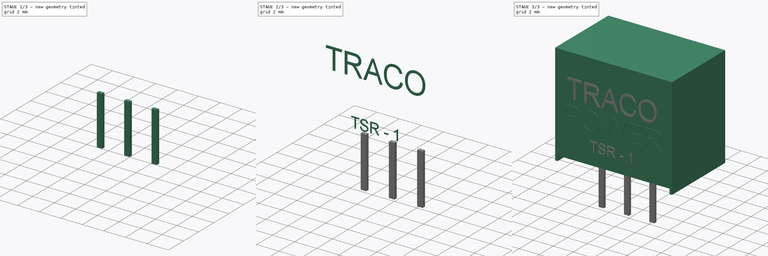
[diagram: build sequence overview — one tinted view per stage of 3, left to right]
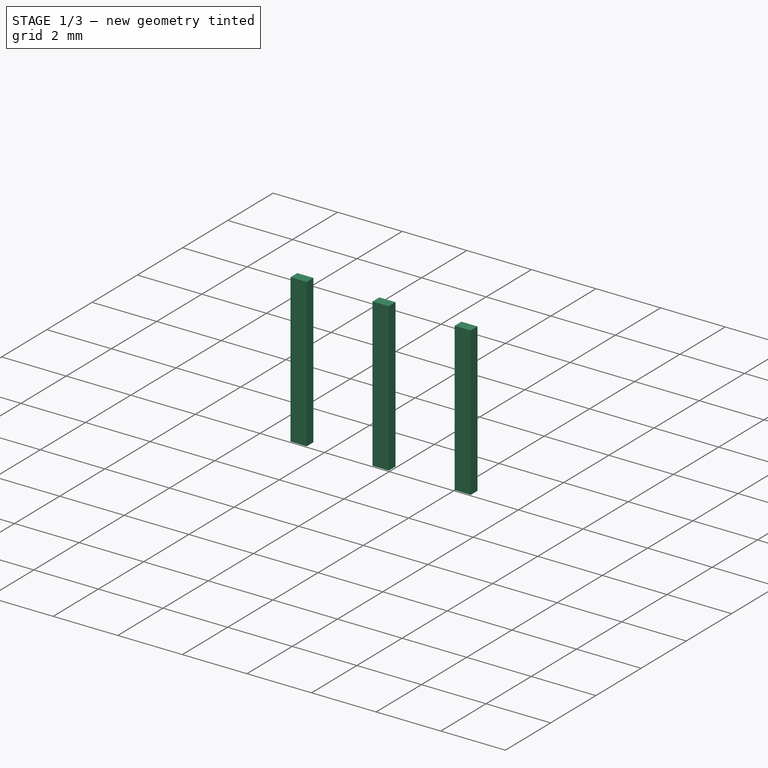
[diagram: stage 1 of 3 — iso view after this stage's code; geometry added in this stage tinted green]
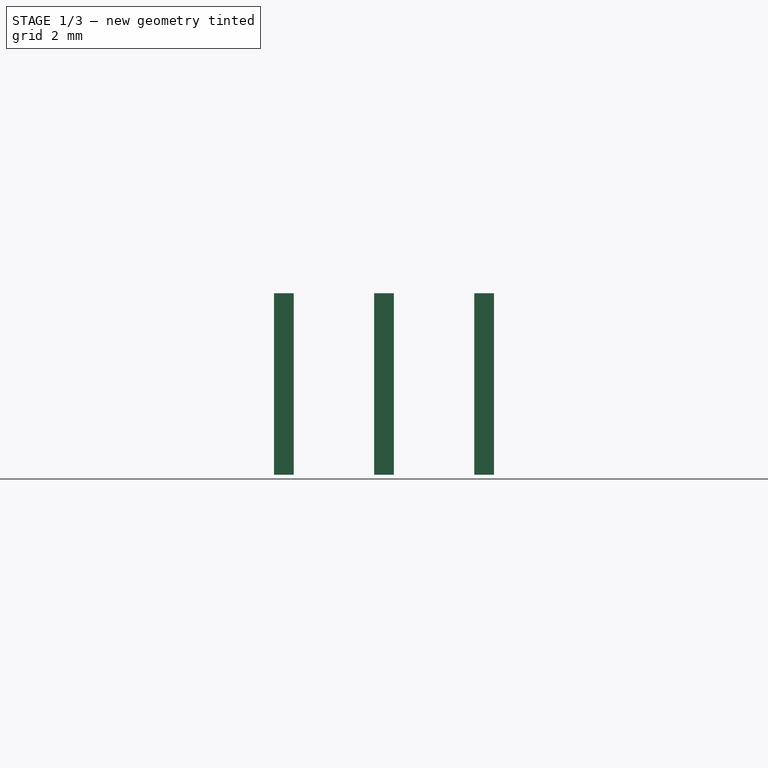
[diagram: stage 1 of 3 — front view after this stage's code; geometry added in this stage tinted green]
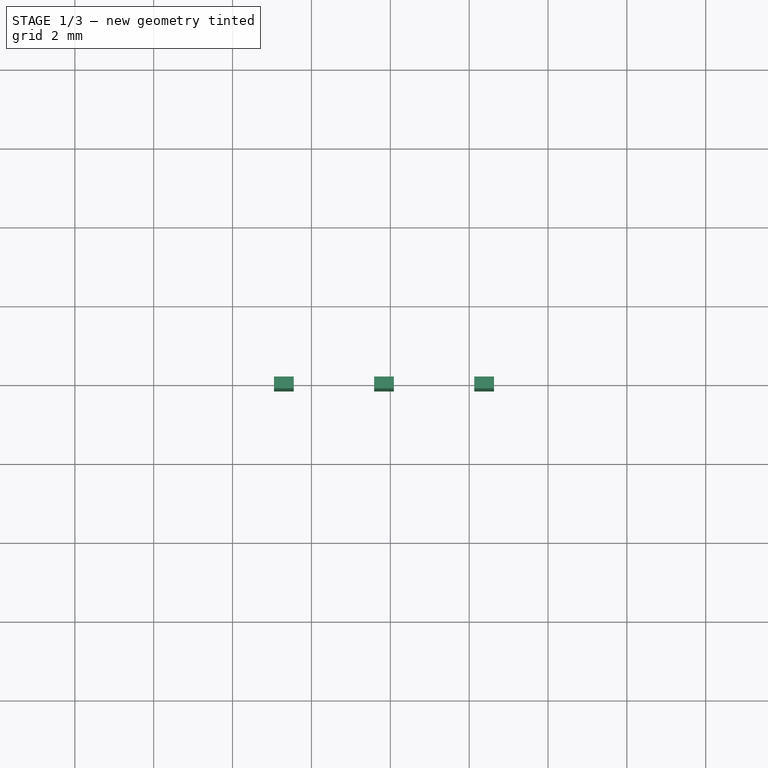
[diagram: stage 1 of 3 — top view after this stage's code; geometry added in this stage tinted green]
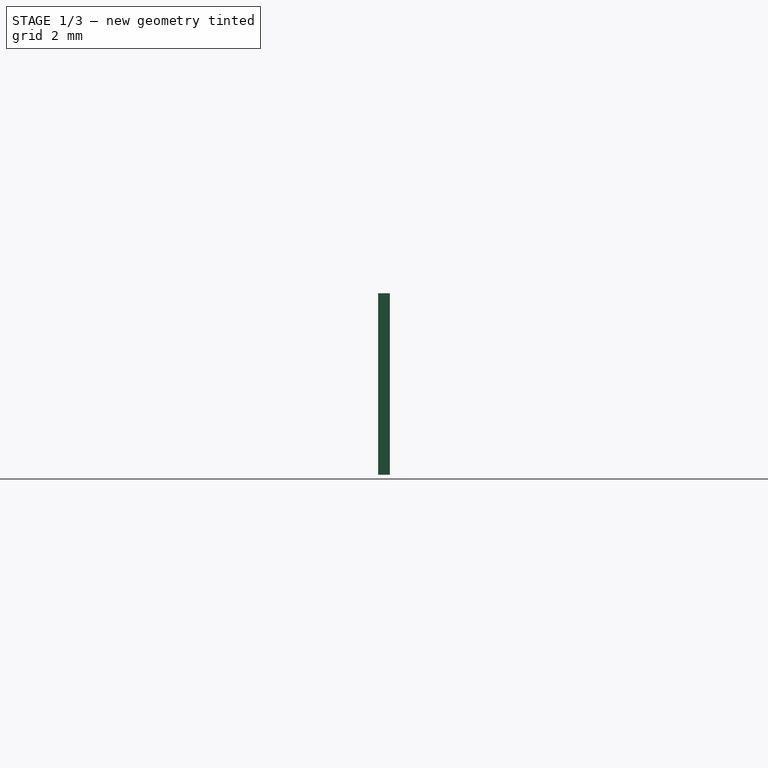
[diagram: stage 1 of 3 — right view after this stage's code; geometry added in this stage tinted green]
FCSTD DOCUMENT  (FreeCAD 0.14R3700 (Git))
Label: TSR-1
License: CC-BY 3.0
LicenseURL: http://creativecommons.org/licenses/by/3.0/
objects: Part::Part2DObjectPython×3, Part::Extrusion×3, Sketcher::SketchObject×2, PartDesign::Pad×2, Part::FeaturePython×1
note: 13 computed .brp shape members not serialized (recipe doc carries the construction recipe); baked Part::Feature solids carry a one-line shape summary decoded from their .brp

FEATURE [PartDesign::Pad] Pad001
  Length = 0.3
  Length2 = 100
  Midplane = true
  Placement = pos=(3.3,2,0) rot=(1,0,0;1.5708rad)
  Sketch = -> Sketch
  Type = 0
FEATURE [Part::FeaturePython] Array  # Draft array (typed FeaturePython)
  Angle = 360
  ArrayType = 0
  Axis = (0,0,1)
  Base = -> Pad001
  Center = (0,0,0)
  IntervalX = (2.54,0,0)
  IntervalY = (0,1,0)
  IntervalZ = (0,0,1)
  NumberPolar = 1
  NumberX = 3
  NumberY = 1
  NumberZ = 1
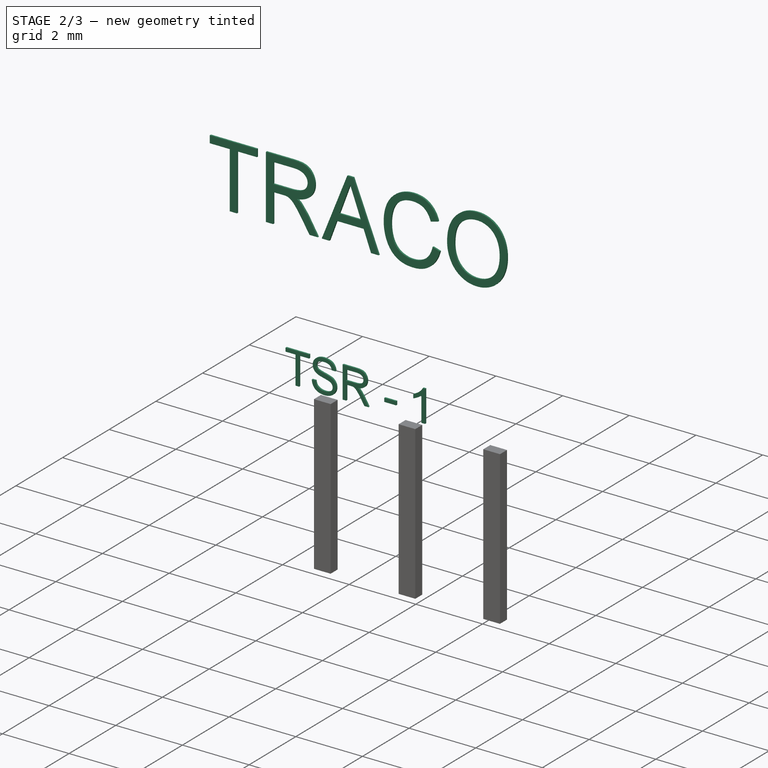
[diagram: stage 2 of 3 — iso view after this stage's code; geometry added in this stage tinted green]
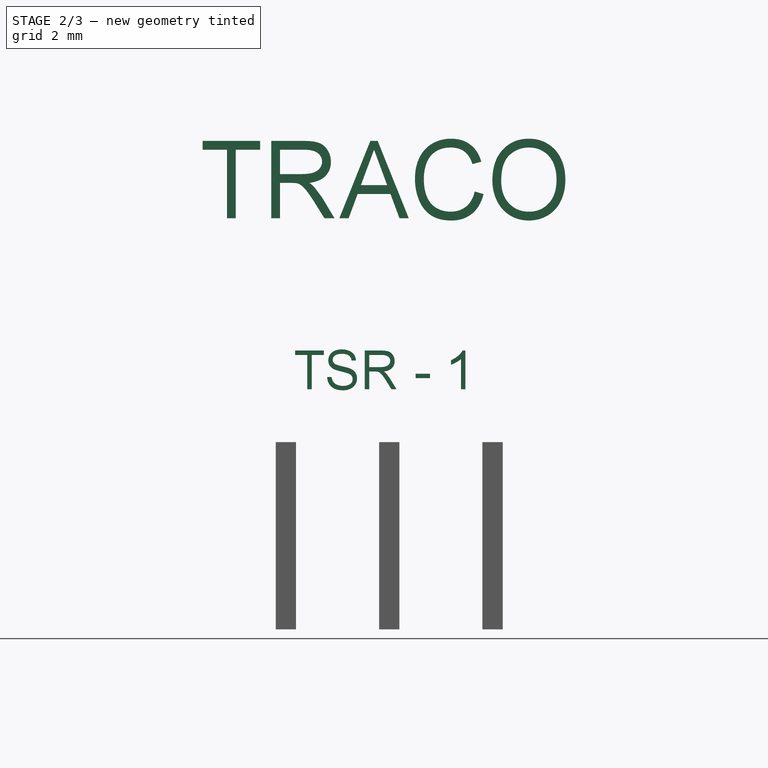
[diagram: stage 2 of 3 — front view after this stage's code; geometry added in this stage tinted green]
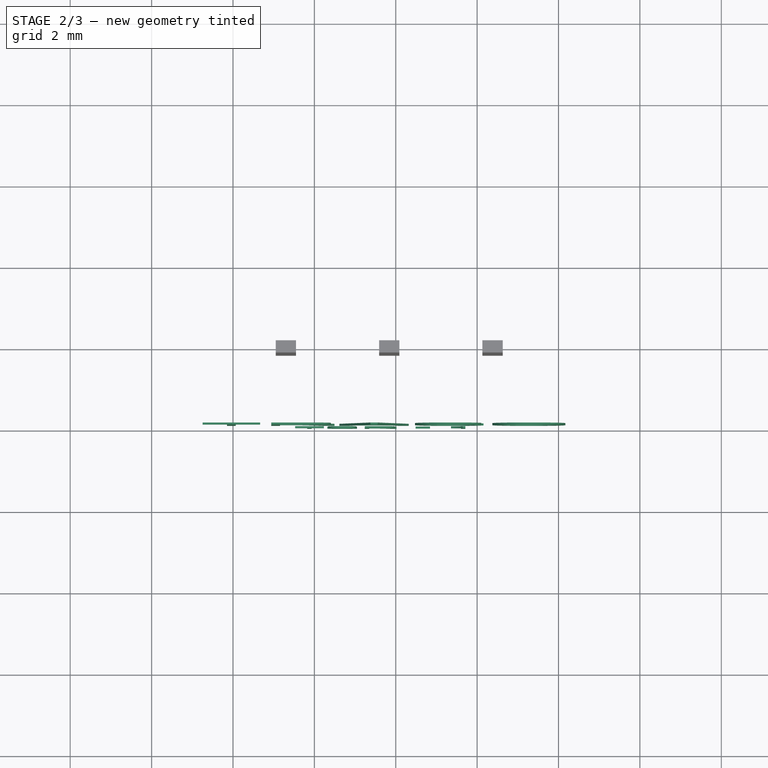
[diagram: stage 2 of 3 — top view after this stage's code; geometry added in this stage tinted green]
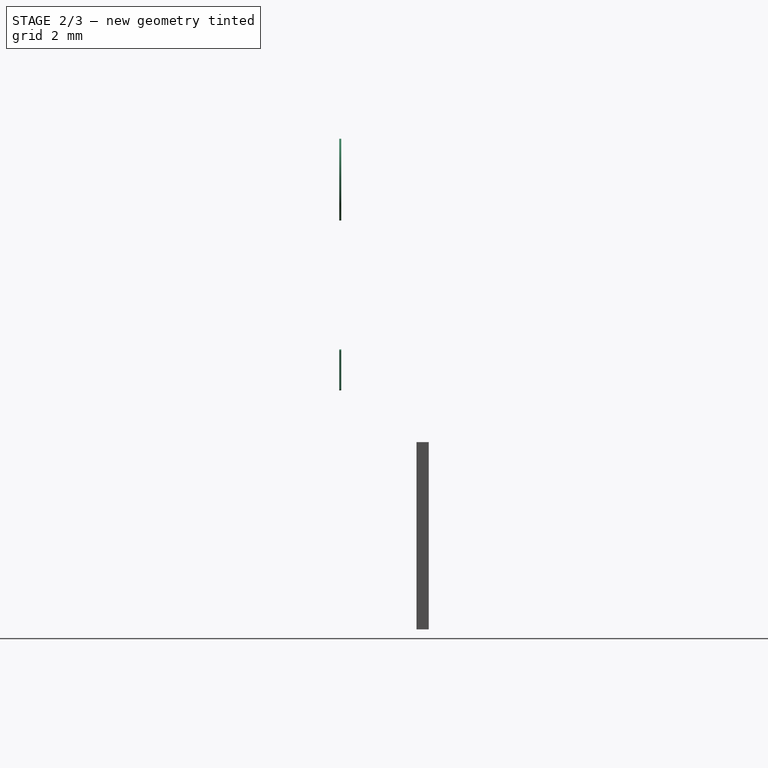
[diagram: stage 2 of 3 — right view after this stage's code; geometry added in this stage tinted green]
FEATURE [Part::Extrusion] Extrude006
  Base = -> ShapeString
  Dir = (0,-0.05,0)
  Solid = true
FEATURE [Part::Extrusion] Extrude008
  Base = -> ShapeString002
  Dir = (0,-0.05,0)
  Solid = true
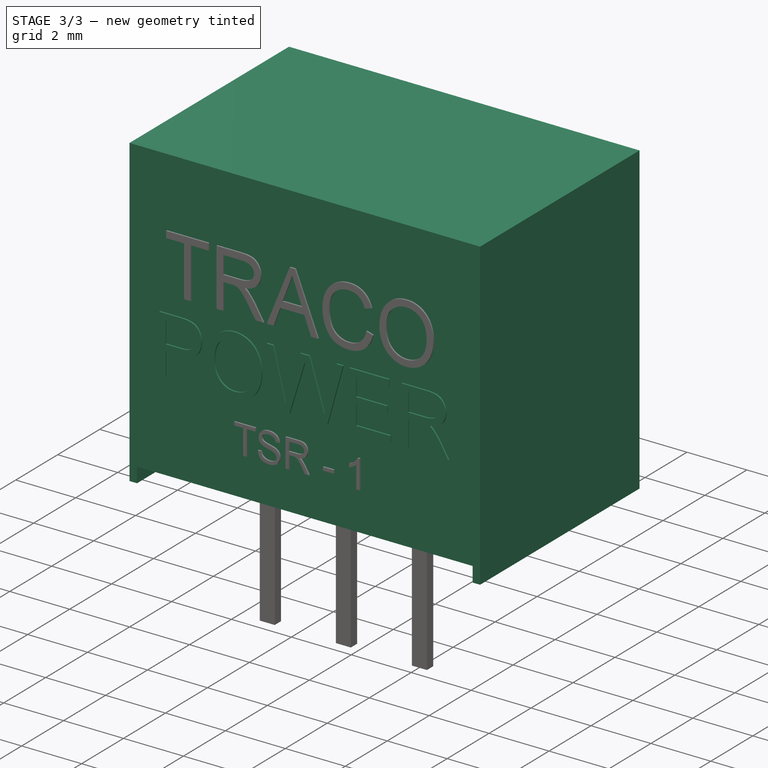
[diagram: stage 3 of 3 — iso view after this stage's code; geometry added in this stage tinted green]
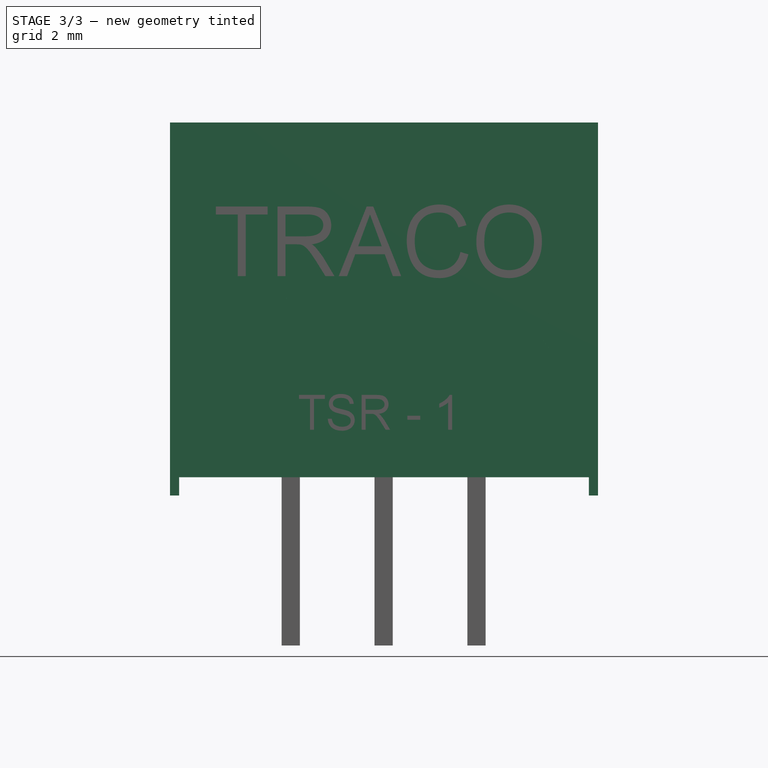
[diagram: stage 3 of 3 — front view after this stage's code; geometry added in this stage tinted green]
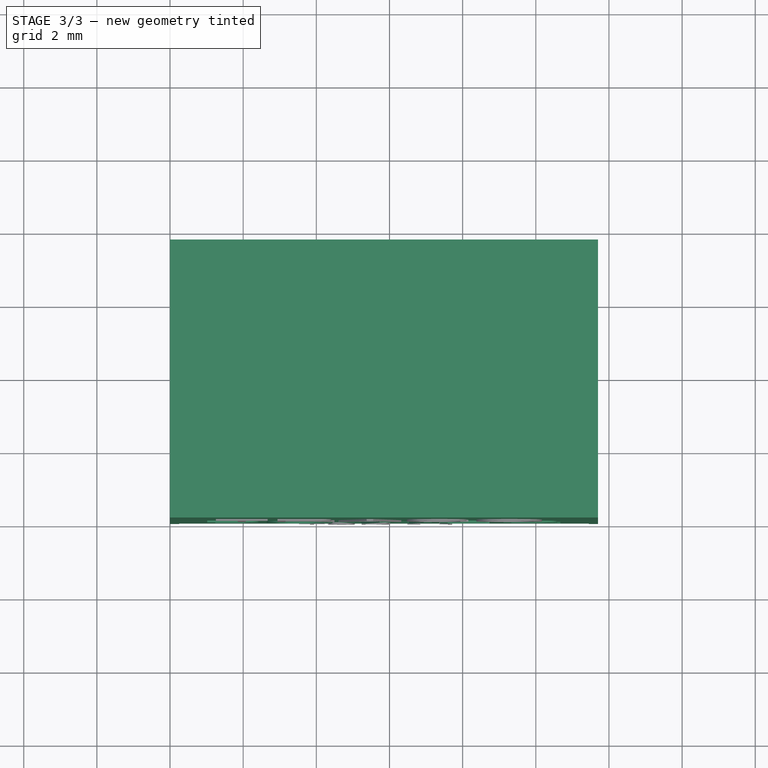
[diagram: stage 3 of 3 — top view after this stage's code; geometry added in this stage tinted green]
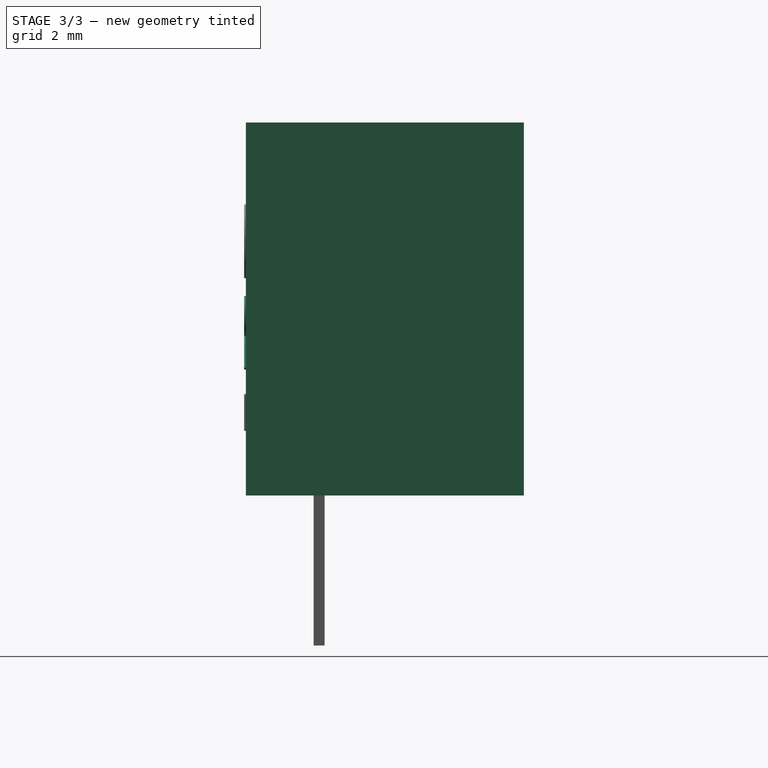
[diagram: stage 3 of 3 — right view after this stage's code; geometry added in this stage tinted green]
FEATURE [Sketcher::SketchObject] Sketch001
  Placement = pos=(0,0,0) rot=(1,0,0;1.5708rad)
  sketch-geometry (8):
    g0: LineSegment StartX=0 StartY=0 StartZ=0 EndX=0 EndY=10.2 EndZ=0
    g1: LineSegment StartX=0 StartY=10.2 StartZ=0 EndX=11.7 EndY=10.2 EndZ=0
    g2: LineSegment StartX=11.7 StartY=10.2 StartZ=0 EndX=11.7 EndY=0 EndZ=0
    g3: LineSegment StartX=11.7 StartY=0 StartZ=0 EndX=11.45 EndY=0 EndZ=0
    g4: LineSegment StartX=11.45 StartY=0 StartZ=0 EndX=11.45 EndY=0.5 EndZ=0
    g5: LineSegment StartX=11.45 StartY=0.5 StartZ=0 EndX=0.25 EndY=0.5 EndZ=0
    g6: LineSegment StartX=0.25 StartY=0.5 StartZ=0 EndX=0.25 EndY=0 EndZ=0
    g7: LineSegment StartX=0.25 StartY=0 StartZ=0 EndX=0 EndY=0 EndZ=0
  constraints (26):
    c: Coincident(g-1,g0)
    c: PointOnObject(g0,g-2)
    c: Vertical(g0)
    c: Coincident(g0,g1)
    c: Horizontal(g1)
    c: Coincident(g1,g2)
    c: Vertical(g2)
    c: Coincident(g2,g3)
    c: Coincident(g3,g4)
    c: Vertical(g4)
    c: Coincident(g4,g5)
    c: Horizontal(g5)
    c: Coincident(g5,g6)
    c: Vertical(g6)
    c: Coincident(g6,g7)
    c: PointOnObject(g7,g-2)
    c: Horizontal(g7)
    c: Coincident(g0,g7)
    c: Coincident(g0,g-1)
    c: Horizontal(g3)
    c: Equal(g7,g3)
    c: Distance(g7) = 0.25
    c: Distance(g0) = 10.2
    c: Distance(g1) = 11.7
    c: DistanceY(g-1,g5) = 0.5
    c: Parallel(g0,g2)
FEATURE [Sketcher::SketchObject] Sketch
  Placement = pos=(3.3,2,0) rot=(1,0,0;1.5708rad)
  sketch-geometry (4):
    g0: LineSegment StartX=-0.25 StartY=0.5 StartZ=0 EndX=-0.25 EndY=-4.1 EndZ=0
    g1: LineSegment StartX=-0.25 StartY=-4.1 StartZ=0 EndX=0.25 EndY=-4.1 EndZ=0
    g2: LineSegment StartX=0.25 StartY=-4.1 StartZ=0 EndX=0.25 EndY=0.5 EndZ=0
    g3: LineSegment StartX=0.25 StartY=0.5 StartZ=0 EndX=-0.25 EndY=0.5 EndZ=0
  constraints (12):
    c: Vertical(g0)
    c: Coincident(g0,g1)
    c: Coincident(g1,g2)
    c: Vertical(g2)
    c: Coincident(g2,g3)
    c: Coincident(g3,g0)
    c: Parallel(g1,g3)
    c: Perpendicular(g0,g3)
    c: Distance(g1) = 0.5
    c: Distance(g0) = 4.6
    c: DistanceY(g-1,g0) = 0.5
    c: Symmetric(g0,g2,g-2)
FEATURE [Part::Part2DObjectPython] ShapeString  label="Traco"  # Draft 2D object (typed FeaturePython)
  FontFile = C:/Program Files/FreeCAD 0.14/fonts/arial.ttf
  Placement = pos=(1.2,0,6) rot=(1,0,0;1.5708rad)
  Size = 2
  String = TRACO
  Tracking = 0
FEATURE [Part::Part2DObjectPython] ShapeString001  label="Power"  # Draft 2D object (typed FeaturePython)
  FontFile = C:/Program Files/FreeCAD 0.14/fonts/arial.ttf
  Placement = pos=(0.8,0,3.5) rot=(1,0,0;1.5708rad)
  Size = 2
  String = POWER
  Tracking = 0
FEATURE [Part::Part2DObjectPython] ShapeString002  label="TSR"  # Draft 2D object (typed FeaturePython)
  FontFile = C:/Program Files/FreeCAD 0.14/fonts/arial.ttf
  Placement = pos=(3.5,0,1.8) rot=(1,0,0;1.5708rad)
  Size = 1
  String = TSR - 1
  Tracking = 0
FEATURE [PartDesign::Pad] Pad  label="Caja"
  Length = 7.6
  Length2 = 100
  Placement = pos=(0,0,0) rot=(1,0,0;1.5708rad)
  Reversed = true
  Sketch = -> Sketch001
  Type = 0
FEATURE [Part::Extrusion] Extrude007
  Base = -> ShapeString001
  Dir = (0,-0.05,0)
  Solid = true
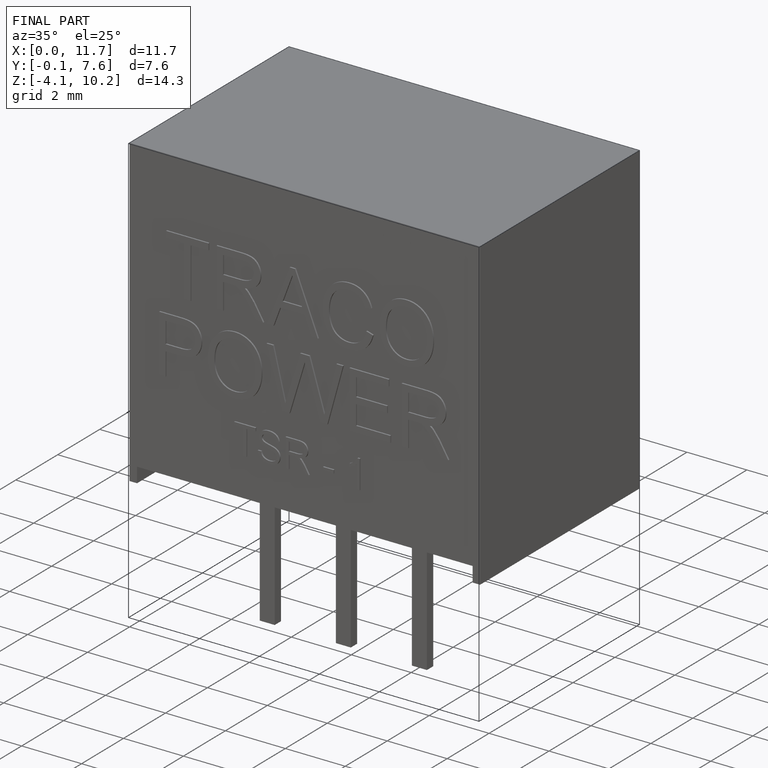
[diagram: finished part — iso view with bounding-box wireframe]
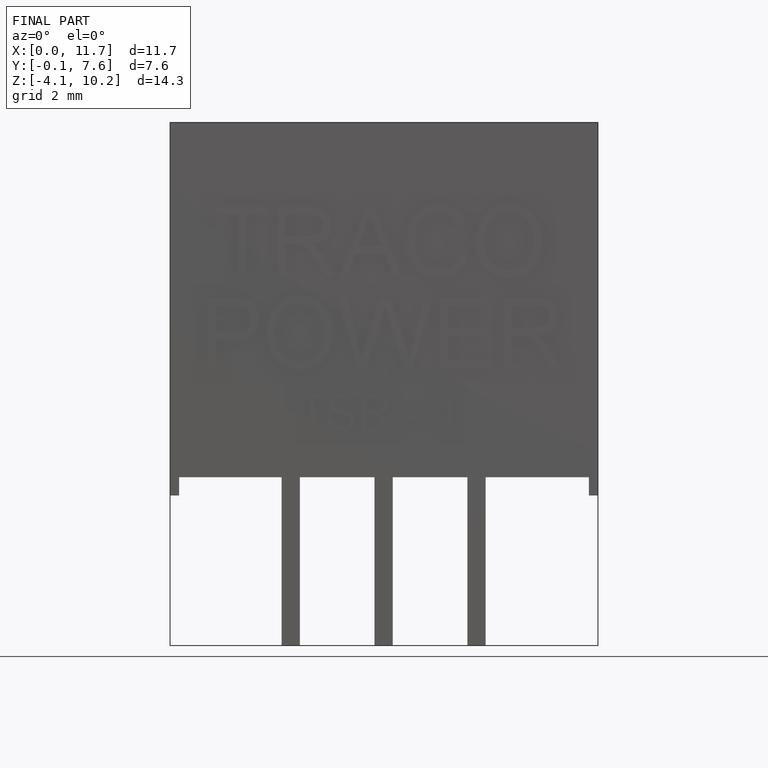
[diagram: finished part — front view with bounding-box wireframe]
